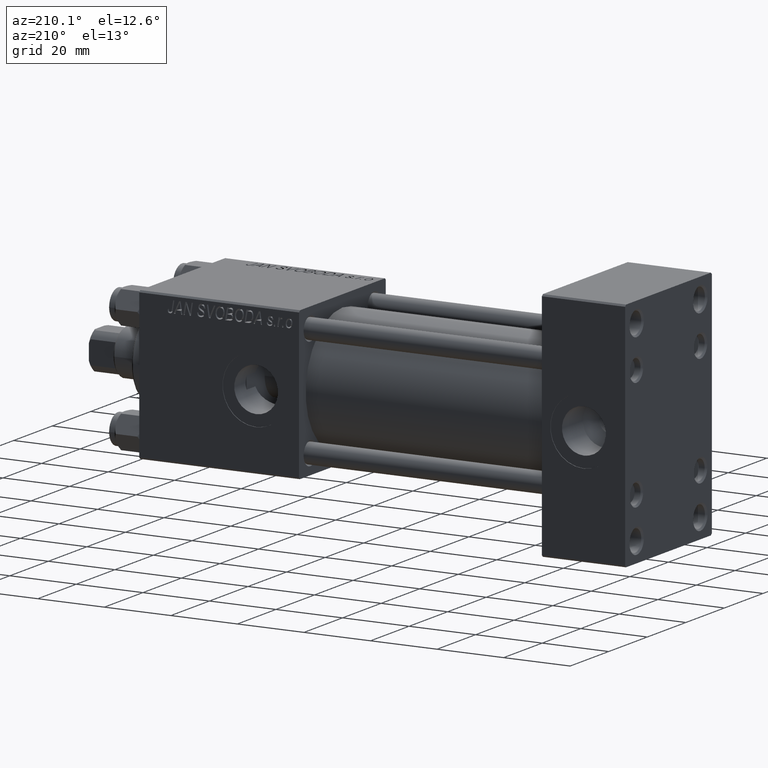
[diagram: clean part render]
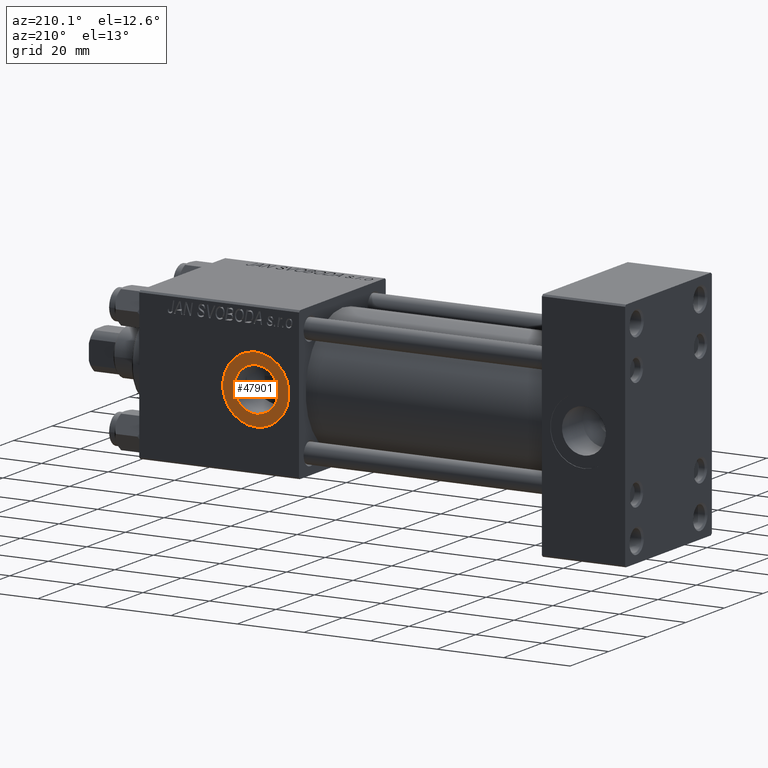
[diagram: same view with one face highlighted and labeled with its STEP entity id]
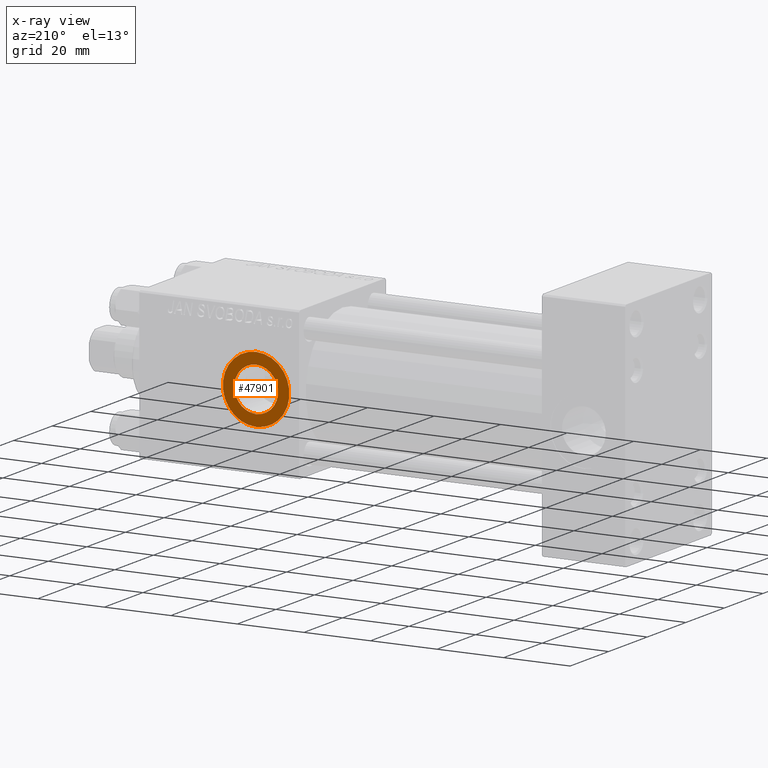
[diagram: x-ray of the same camera — body ghosted, the highlighted face saturated]
A machine part, auxiliary view. The second image highlights one B-rep face of the part: STEP entity #47901.
The next image is the same camera in x-ray: the body ghosted, the highlighted face saturated — about 0% of this face is hidden behind the body in this view.
In plain terms, the highlighted planar face has unit normal (0, 1, 0).
Its self-contained STEP definition (entity closure, byte-faithful):
#2674 = CIRCLE ( 'NONE', #30901, 6.580000000000002736 ) ;
#3624 = DIRECTION ( 'NONE',  ( 0.000000000000000000, 0.000000000000000000, 1.000000000000000000 ) ) ;
#6592 = DIRECTION ( 'NONE',  ( 0.000000000000000000, -0.000000000000000000, 1.000000000000000000 ) ) ;
#6951 = EDGE_LOOP ( 'NONE', ( #37062, #23786 ) ) ;
#7093 = FACE_BOUND ( 'NONE', #16159, .T. ) ;
#8985 = CARTESIAN_POINT ( 'NONE',  ( 111.0000000000000000, 22.30000000000000426, 6.580000000000002736 ) ) ;
#9084 = CARTESIAN_POINT ( 'NONE',  ( 111.0000000000000000, 22.30000000000000426, -9.999999999999994671 ) ) ;
#9882 = AXIS2_PLACEMENT_3D ( 'NONE', #10647, #42211, #15445 ) ;
#10135 = CARTESIAN_POINT ( 'NONE',  ( 111.0000000000000000, 22.30000000000000426, 0.000000000000000000 ) ) ;
#10354 = VERTEX_POINT ( 'NONE', #8985 ) ;
#10386 = DIRECTION ( 'NONE',  ( 0.000000000000000000, 1.000000000000000000, 0.000000000000000000 ) ) ;
#10647 = CARTESIAN_POINT ( 'NONE',  ( 111.0000000000000000, 22.30000000000000426, 0.000000000000000000 ) ) ;
#11199 = DIRECTION ( 'NONE',  ( 0.000000000000000000, 1.000000000000000000, 0.000000000000000000 ) ) ;
#11817 = DIRECTION ( 'NONE',  ( 0.000000000000000000, 0.000000000000000000, 1.000000000000000000 ) ) ;
#11900 = CARTESIAN_POINT ( 'NONE',  ( 111.0000000000000000, 22.30000000000000426, -6.580000000000002736 ) ) ;
#15445 = DIRECTION ( 'NONE',  ( 0.000000000000000000, 0.000000000000000000, 1.000000000000000000 ) ) ;
#16159 = EDGE_LOOP ( 'NONE', ( #32471, #39861 ) ) ;
#19157 = CARTESIAN_POINT ( 'NONE',  ( 111.0000000000000000, 22.30000000000000426, 0.000000000000000000 ) ) ;
#19396 = DIRECTION ( 'NONE',  ( 0.000000000000000000, 1.000000000000000000, 0.000000000000000000 ) ) ;
#23786 = ORIENTED_EDGE ( 'NONE', *, *, #47266, .T. ) ;
#23924 = EDGE_CURVE ( 'NONE', #25192, #10354, #42137, .T. ) ;
#25192 = VERTEX_POINT ( 'NONE', #11900 ) ;
#27003 = CIRCLE ( 'NONE', #47999, 9.999999999999994671 ) ;
#27396 = VERTEX_POINT ( 'NONE', #9084 ) ;
#30063 = PLANE ( 'NONE',  #47240 ) ;
#30500 = DIRECTION ( 'NONE',  ( 0.000000000000000000, 0.000000000000000000, 1.000000000000000000 ) ) ;
#30633 = CARTESIAN_POINT ( 'NONE',  ( 111.0000000000000000, 22.30000000000000426, 0.000000000000000000 ) ) ;
#30901 = AXIS2_PLACEMENT_3D ( 'NONE', #30996, #19396, #11817 ) ;
#30996 = CARTESIAN_POINT ( 'NONE',  ( 111.0000000000000000, 22.30000000000000426, 0.000000000000000000 ) ) ;
#32471 = ORIENTED_EDGE ( 'NONE', *, *, #43446, .F. ) ;
#34774 = DIRECTION ( 'NONE',  ( 0.000000000000000000, 1.000000000000000000, 0.000000000000000000 ) ) ;
#36441 = AXIS2_PLACEMENT_3D ( 'NONE', #30633, #11199, #3624 ) ;
#37019 = CARTESIAN_POINT ( 'NONE',  ( 111.0000000000000000, 22.30000000000000426, 9.999999999999994671 ) ) ;
#37062 = ORIENTED_EDGE ( 'NONE', *, *, #37595, .T. ) ;
#37595 = EDGE_CURVE ( 'NONE', #48594, #27396, #39690, .T. ) ;
#39690 = CIRCLE ( 'NONE', #9882, 9.999999999999994671 ) ;
#39861 = ORIENTED_EDGE ( 'NONE', *, *, #23924, .F. ) ;
#42137 = CIRCLE ( 'NONE', #36441, 6.580000000000002736 ) ;
#42211 = DIRECTION ( 'NONE',  ( 0.000000000000000000, 1.000000000000000000, 0.000000000000000000 ) ) ;
#43446 = EDGE_CURVE ( 'NONE', #10354, #25192, #2674, .T. ) ;
#44981 = FACE_OUTER_BOUND ( 'NONE', #6951, .T. ) ;
#47240 = AXIS2_PLACEMENT_3D ( 'NONE', #10135, #10386, #6592 ) ;
#47266 = EDGE_CURVE ( 'NONE', #27396, #48594, #27003, .T. ) ;
#47901 = ADVANCED_FACE ( 'NONE', ( #7093, #44981 ), #30063, .T. ) ;
#47999 = AXIS2_PLACEMENT_3D ( 'NONE', #19157, #34774, #30500 ) ;
#48594 = VERTEX_POINT ( 'NONE', #37019 ) ;